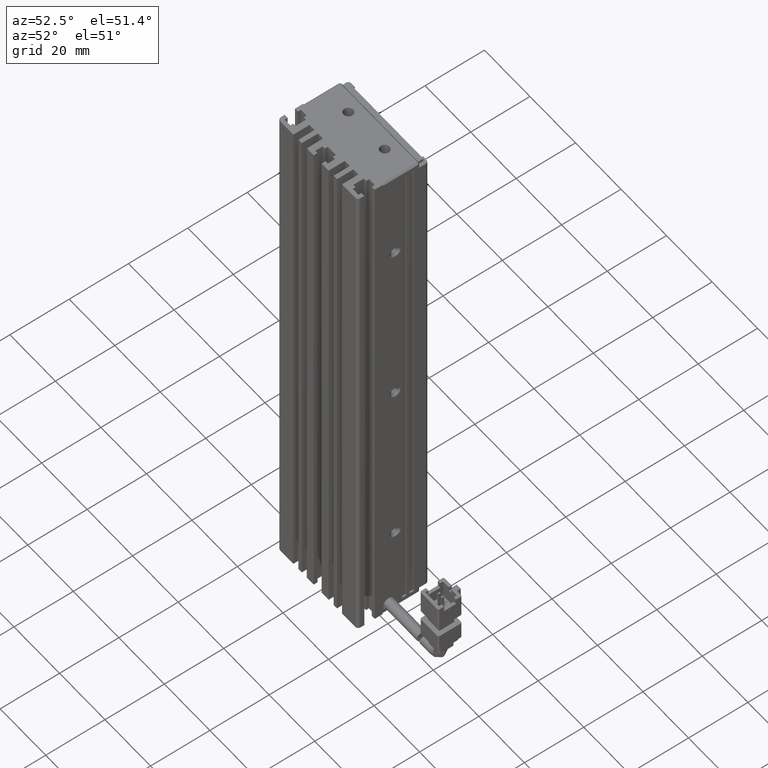
[diagram: clean part render]
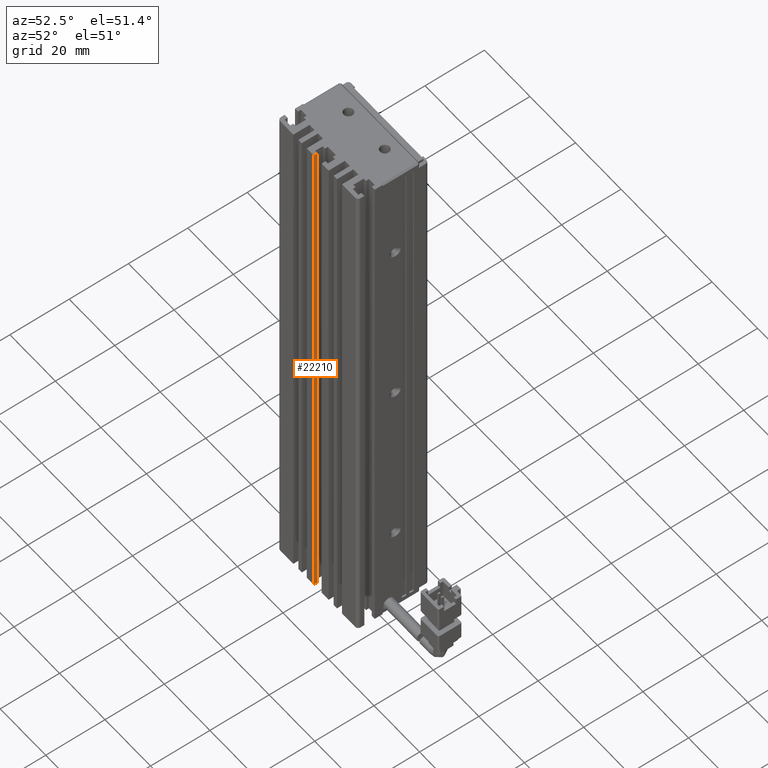
[diagram: same view with one face highlighted and labeled with its STEP entity id]
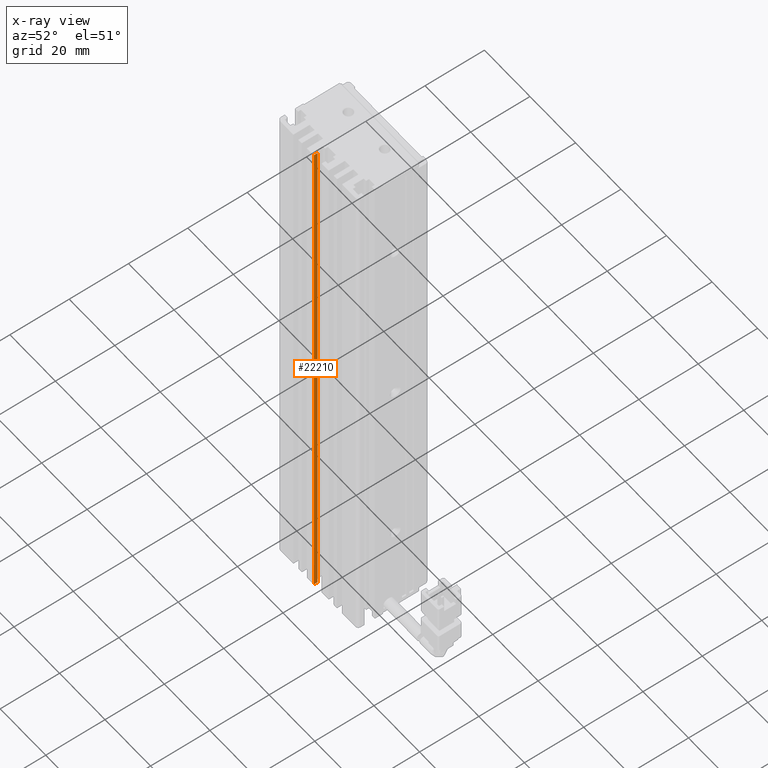
[diagram: x-ray of the same camera — body ghosted, the highlighted face saturated]
A machine part, auxiliary view. The second image highlights one B-rep face of the part: STEP entity #22210.
The next image is the same camera in x-ray: the body ghosted, the highlighted face saturated — about 0% of this face is hidden behind the body in this view.
In plain terms, the highlighted planar face has unit normal (1, 0, -0).
Its self-contained STEP definition (entity closure, byte-faithful):
#1133 = VERTEX_POINT ( 'NONE', #18062 ) ;
#3621 = EDGE_LOOP ( 'NONE', ( #59064, #6976, #16963, #48128 ) ) ;
#4483 = CARTESIAN_POINT ( 'NONE',  ( 39.17537974683542500, 7.083797468354437600, -23.00000000000000700 ) ) ;
#5297 = VERTEX_POINT ( 'NONE', #46551 ) ;
#6122 = EDGE_CURVE ( 'NONE', #58473, #5297, #25999, .T. ) ;
#6976 = ORIENTED_EDGE ( 'NONE', *, *, #14544, .F. ) ;
#7015 = EDGE_CURVE ( 'NONE', #63945, #58473, #59024, .T. ) ;
#9099 = LINE ( 'NONE', #63343, #68993 ) ;
#14544 = EDGE_CURVE ( 'NONE', #63945, #1133, #43601, .T. ) ;
#16963 = ORIENTED_EDGE ( 'NONE', *, *, #7015, .T. ) ;
#18062 = CARTESIAN_POINT ( 'NONE',  ( 39.17537974683542500, 10.99073232304837000, -23.00000000000000700 ) ) ;
#18828 = VECTOR ( 'NONE', #42352, 1000.000000000000000 ) ;
#20045 = DIRECTION ( 'NONE',  ( -0.0000000000000000000, 0.0000000000000000000, 1.000000000000000000 ) ) ;
#22210 = ADVANCED_FACE ( 'NONE', ( #60502 ), #72231, .T. ) ;
#25999 = LINE ( 'NONE', #67881, #56395 ) ;
#26992 = DIRECTION ( 'NONE',  ( -0.0000000000000000000, -1.000000000000000000, -0.0000000000000000000 ) ) ;
#28717 = DIRECTION ( 'NONE',  ( 1.000000000000000000, 0.0000000000000000000, -0.0000000000000000000 ) ) ;
#28990 = DIRECTION ( 'NONE',  ( -0.0000000000000000000, 0.0000000000000000000, -1.000000000000000000 ) ) ;
#29642 = VECTOR ( 'NONE', #73596, 1000.000000000000000 ) ;
#36713 = CARTESIAN_POINT ( 'NONE',  ( 39.17537974683542500, 10.99073232304837000, -207.0000000000000300 ) ) ;
#42352 = DIRECTION ( 'NONE',  ( -0.0000000000000000000, 0.0000000000000000000, 1.000000000000000000 ) ) ;
#43601 = LINE ( 'NONE', #70964, #18828 ) ;
#45939 = CARTESIAN_POINT ( 'NONE',  ( 39.17537974683542500, 12.29073232304837200, -207.0000000000000300 ) ) ;
#46551 = CARTESIAN_POINT ( 'NONE',  ( 39.17537974683542500, 12.29073232304837200, -23.00000000000000700 ) ) ;
#48128 = ORIENTED_EDGE ( 'NONE', *, *, #6122, .T. ) ;
#55939 = EDGE_CURVE ( 'NONE', #5297, #1133, #9099, .T. ) ;
#56395 = VECTOR ( 'NONE', #20045, 1000.000000000000000 ) ;
#58473 = VERTEX_POINT ( 'NONE', #45939 ) ;
#59024 = LINE ( 'NONE', #73849, #29642 ) ;
#59064 = ORIENTED_EDGE ( 'NONE', *, *, #55939, .T. ) ;
#60502 = FACE_OUTER_BOUND ( 'NONE', #3621, .T. ) ;
#63343 = CARTESIAN_POINT ( 'NONE',  ( 39.17537974683542500, 7.083797468354437600, -23.00000000000000700 ) ) ;
#63945 = VERTEX_POINT ( 'NONE', #36713 ) ;
#67881 = CARTESIAN_POINT ( 'NONE',  ( 39.17537974683542500, 12.29073232304837200, -23.00000000000000700 ) ) ;
#68993 = VECTOR ( 'NONE', #26992, 1000.000000000000000 ) ;
#70964 = CARTESIAN_POINT ( 'NONE',  ( 39.17537974683542500, 10.99073232304837000, -23.00000000000000700 ) ) ;
#72231 = PLANE ( 'NONE',  #74372 ) ;
#73596 = DIRECTION ( 'NONE',  ( 0.0000000000000000000, 1.000000000000000000, 0.0000000000000000000 ) ) ;
#73849 = CARTESIAN_POINT ( 'NONE',  ( 39.17537974683542500, 7.083797468354437600, -207.0000000000000300 ) ) ;
#74372 = AXIS2_PLACEMENT_3D ( 'NONE', #4483, #28717, #28990 ) ;